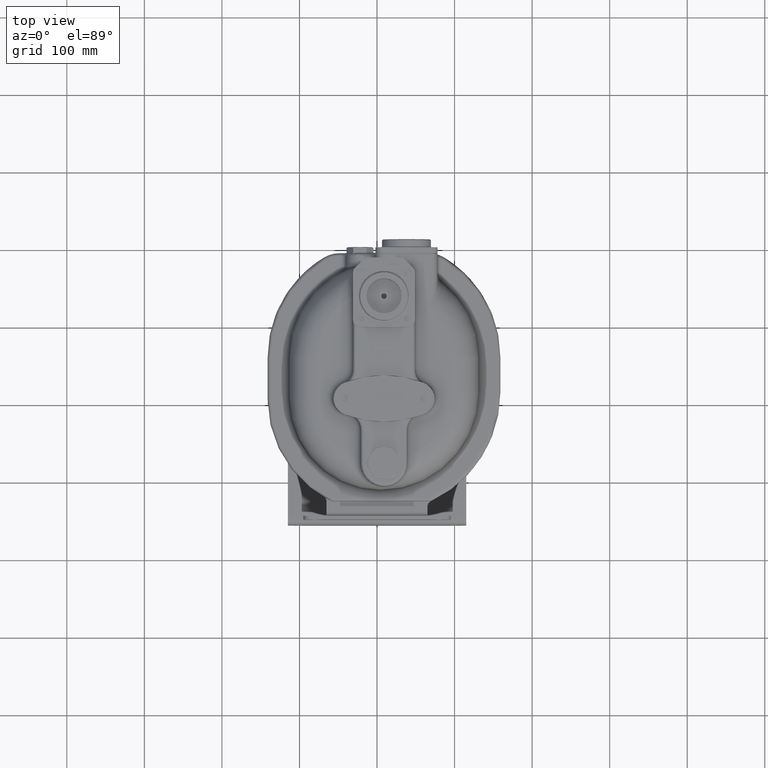
[diagram: clean part render]
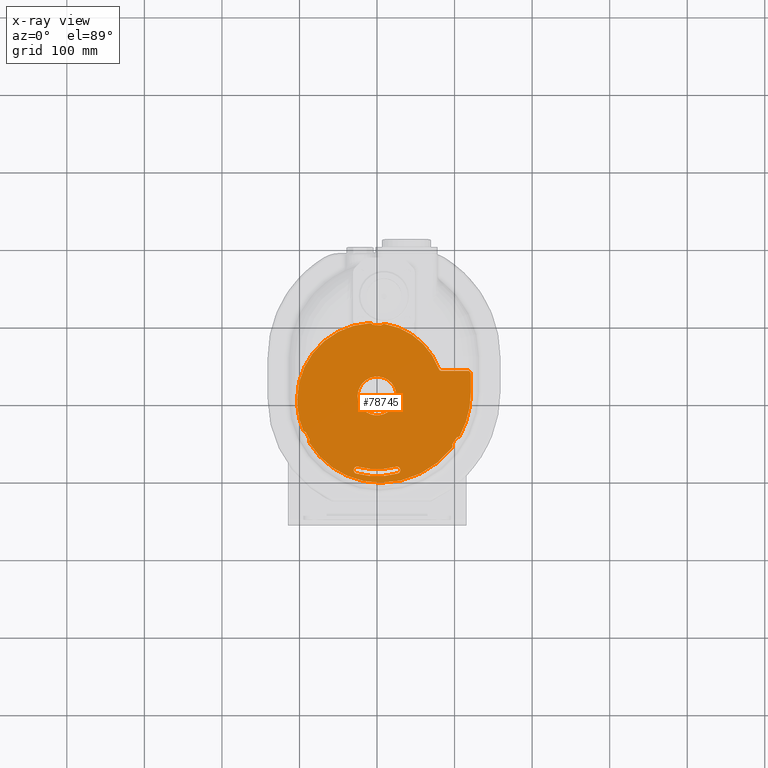
[diagram: x-ray — body ghosted, one internal face saturated and labeled with its STEP entity id]
A machine part, top view, then the same camera in x-ray: the body is ghosted and one INTERNAL B-rep face — a face not visible from any outside direction — is saturated and labeled: STEP entity #78745.
In plain terms, the highlighted planar face has unit normal (0, 0, -1).
Its self-contained STEP definition (entity closure, byte-faithful):
#17261=CARTESIAN_POINT('',(8.300285709621E1,3.6E1,-6.5E0));
#17262=DIRECTION('',(0.E0,0.E0,-1.E0));
#17263=DIRECTION('',(4.842919138311E-2,-9.988266182987E-1,0.E0));
#17264=AXIS2_PLACEMENT_3D('',#17261,#17262,#17263);
#17266=CARTESIAN_POINT('',(9.E0,8.892748367682E1,-6.5E0));
#17267=DIRECTION('',(0.E0,0.E0,1.E0));
#17268=DIRECTION('',(1.578947368421E-1,9.874559494365E-1,0.E0));
#17269=AXIS2_PLACEMENT_3D('',#17266,#17267,#17268);
#17271=DIRECTION('',(-9.987351946407E-1,5.027932960894E-2,0.E0));
#17272=VECTOR('',#17271,1.106472982759E1);
#17273=CARTESIAN_POINT('',(5.641170585461E0,9.109964043084E1,-6.5E0));
#17274=LINE('',#17273,#17272);
#17275=CARTESIAN_POINT('',(-9.E0,8.989279633531E1,-6.5E0));
#17276=DIRECTION('',(0.E0,0.E0,-1.E0));
#17277=DIRECTION('',(-4.761904761905E-2,9.988655696859E-1,0.E0));
#17278=AXIS2_PLACEMENT_3D('',#17275,#17276,#17277);
#17280=CARTESIAN_POINT('',(-4.5E0,-4.5E0,-6.5E0));
#17281=DIRECTION('',(0.E0,0.E0,-1.E0));
#17282=DIRECTION('',(-1.E0,0.E0,0.E0));
#17283=AXIS2_PLACEMENT_3D('',#17280,#17281,#17282);
#17285=CARTESIAN_POINT('',(4.5E0,-4.5E0,-6.5E0));
#17286=DIRECTION('',(0.E0,0.E0,-1.E0));
#17287=DIRECTION('',(-9.298754007984E-1,-3.678746240095E-1,0.E0));
#17288=AXIS2_PLACEMENT_3D('',#17285,#17286,#17287);
#17290=CARTESIAN_POINT('',(-9.174210398263E1,-4.257502358498E1,-6.5E0));
#17291=DIRECTION('',(0.E0,0.E0,1.E0));
#17292=DIRECTION('',(-9.298754007983E-1,-3.678746240095E-1,0.E0));
#17293=AXIS2_PLACEMENT_3D('',#17290,#17291,#17292);
#17295=DIRECTION('',(4.484418717834E-1,-8.938119979232E-1,0.E0));
#17296=VECTOR('',#17295,1.098521978868E1);
#17297=CARTESIAN_POINT('',(-9.186551285823E1,-4.657311941292E1,-6.5E0));
#17298=LINE('',#17297,#17296);
#17299=CARTESIAN_POINT('',(-8.367312904622E1,-5.870100842419E1,-6.5E0));
#17300=DIRECTION('',(0.E0,0.E0,-1.E0));
#17301=DIRECTION('',(-8.519142903016E-1,-5.236812408135E-1,0.E0));
#17302=AXIS2_PLACEMENT_3D('',#17299,#17300,#17301);
#17304=CARTESIAN_POINT('',(4.5E0,-4.5E0,-6.5E0));
#17305=DIRECTION('',(0.E0,0.E0,-1.E0));
#17306=DIRECTION('',(0.E0,-1.E0,0.E0));
#17307=AXIS2_PLACEMENT_3D('',#17304,#17305,#17306);
#17309=CARTESIAN_POINT('',(4.5E0,4.5E0,-6.5E0));
#17310=DIRECTION('',(0.E0,0.E0,-1.E0));
#17311=DIRECTION('',(7.908192518570E-1,-6.120497617779E-1,0.E0));
#17312=AXIS2_PLACEMENT_3D('',#17309,#17310,#17311);
#17314=CARTESIAN_POINT('',(9.346716583391E1,-6.435559820001E1,-6.5E0));
#17315=DIRECTION('',(0.E0,0.E0,1.E0));
#17316=DIRECTION('',(7.908192518570E-1,-6.120497617779E-1,0.E0));
#17317=AXIS2_PLACEMENT_3D('',#17314,#17315,#17316);
#17319=DIRECTION('',(5.459704436477E-1,8.378044370037E-1,0.E0));
#17320=VECTOR('',#17319,1.094643522696E1);
#17321=CARTESIAN_POINT('',(9.696428239858E1,-6.241390416306E1,-6.5E0));
#17322=LINE('',#17321,#17320);
#17323=CARTESIAN_POINT('',(1.033229688702E2,-4.926123904526E1,-6.5E0));
#17324=DIRECTION('',(0.E0,0.E0,-1.E0));
#17325=DIRECTION('',(8.784263899572E-1,-4.778776804023E-1,0.E0));
#17326=AXIS2_PLACEMENT_3D('',#17323,#17324,#17325);
#17328=CARTESIAN_POINT('',(4.5E0,4.5E0,-6.5E0));
#17329=DIRECTION('',(0.E0,0.E0,-1.E0));
#17330=DIRECTION('',(1.E0,1.138240670053E-14,0.E0));
#17331=AXIS2_PLACEMENT_3D('',#17328,#17329,#17330);
#17333=DIRECTION('',(0.E0,1.E0,0.E0));
#17334=VECTOR('',#17333,2.4E1);
#17335=CARTESIAN_POINT('',(1.21E2,4.5E0,-6.5E0));
#17336=LINE('',#17335,#17334);
#17337=CARTESIAN_POINT('',(1.17E2,2.85E1,-6.5E0));
#17338=DIRECTION('',(0.E0,0.E0,-1.E0));
#17339=DIRECTION('',(0.E0,1.E0,0.E0));
#17340=AXIS2_PLACEMENT_3D('',#17337,#17338,#17339);
#17342=DIRECTION('',(-1.E0,0.E0,0.E0));
#17343=VECTOR('',#17342,3.364642864402E1);
#17344=CARTESIAN_POINT('',(1.17E2,3.25E1,-6.5E0));
#17345=LINE('',#17344,#17343);
#17346=CARTESIAN_POINT('',(8.335357135598E1,3.65E1,-6.5E0));
#17347=DIRECTION('',(0.E0,0.E0,-1.E0));
#17348=DIRECTION('',(0.E0,-1.E0,0.E0));
#17349=AXIS2_PLACEMENT_3D('',#17346,#17347,#17348);
#17351=CARTESIAN_POINT('',(0.E0,0.E0,-6.5E0));
#17352=DIRECTION('',(0.E0,0.E0,1.E0));
#17353=DIRECTION('',(-1.E0,0.E0,0.E0));
#17354=AXIS2_PLACEMENT_3D('',#17351,#17352,#17353);
#17356=CARTESIAN_POINT('',(0.E0,0.E0,-6.5E0));
#17357=DIRECTION('',(0.E0,0.E0,1.E0));
#17358=DIRECTION('',(1.E0,0.E0,0.E0));
#17359=AXIS2_PLACEMENT_3D('',#17356,#17357,#17358);
#17361=CARTESIAN_POINT('',(2.55E1,-9.565955258102E1,-6.5E0));
#17362=DIRECTION('',(0.E0,0.E0,-1.E0));
#17363=DIRECTION('',(-2.575757575753E-1,9.662581068791E-1,0.E0));
#17364=AXIS2_PLACEMENT_3D('',#17361,#17362,#17363);
#17366=CARTESIAN_POINT('',(0.E0,0.E0,-6.5E0));
#17367=DIRECTION('',(0.E0,0.E0,-1.E0));
#17368=DIRECTION('',(2.575757575758E-1,-9.662581068789E-1,0.E0));
#17369=AXIS2_PLACEMENT_3D('',#17366,#17367,#17368);
#17371=CARTESIAN_POINT('',(-2.55E1,-9.565955258102E1,-6.5E0));
#17372=DIRECTION('',(0.E0,0.E0,-1.E0));
#17373=DIRECTION('',(-2.575757575757E-1,-9.662581068789E-1,0.E0));
#17374=AXIS2_PLACEMENT_3D('',#17371,#17372,#17373);
#17376=CARTESIAN_POINT('',(0.E0,0.E0,-6.5E0));
#17377=DIRECTION('',(0.E0,0.E0,-1.E0));
#17378=DIRECTION('',(2.575757575758E-1,-9.662581068789E-1,0.E0));
#17379=AXIS2_PLACEMENT_3D('',#17376,#17377,#17378);
#18688=CARTESIAN_POINT('',(-4.5E0,4.5E0,-6.5E0));
#18689=DIRECTION('',(0.E0,0.E0,-1.E0));
#18690=DIRECTION('',(1.578947368421E-1,9.874559494365E-1,0.E0));
#18691=AXIS2_PLACEMENT_3D('',#18688,#18689,#18690);
#46565=CARTESIAN_POINT('',(-2.5E1,0.E0,-6.5E0));
#46566=CARTESIAN_POINT('',(2.5E1,0.E0,-6.5E0));
#46567=VERTEX_POINT('',#46565);
#46568=VERTEX_POINT('',#46566);
#46676=CARTESIAN_POINT('',(2.434090909091E1,-9.131139110006E1,-6.5E0));
#46678=VERTEX_POINT('',#46676);
#46680=CARTESIAN_POINT('',(2.665909090909E1,-1.000077140620E2,-6.5E0));
#46682=VERTEX_POINT('',#46680);
#46684=CARTESIAN_POINT('',(-2.665909090909E1,-1.000077140620E2,-6.5E0));
#46686=VERTEX_POINT('',#46684);
#46688=CARTESIAN_POINT('',(-2.434090909091E1,-9.131139110006E1,-6.5E0));
#46690=VERTEX_POINT('',#46688);
#46828=CARTESIAN_POINT('',(1.21E2,4.5E0,-6.5E0));
#46829=CARTESIAN_POINT('',(1.21E2,2.85E1,-6.5E0));
#46830=VERTEX_POINT('',#46828);
#46831=VERTEX_POINT('',#46829);
#46832=CARTESIAN_POINT('',(1.17E2,3.25E1,-6.5E0));
#46833=VERTEX_POINT('',#46832);
#46834=CARTESIAN_POINT('',(8.335357135598E1,3.25E1,-6.5E0));
#46835=VERTEX_POINT('',#46834);
#46836=CARTESIAN_POINT('',(-1.03E2,-4.5E0,-6.5E0));
#46837=CARTESIAN_POINT('',(-9.190476190476E0,9.388825861406E1,-6.5E0));
#46838=VERTEX_POINT('',#46836);
#46839=VERTEX_POINT('',#46837);
#46840=CARTESIAN_POINT('',(4.5E0,-1.12E2,-6.5E0));
#46841=CARTESIAN_POINT('',(-8.708078620743E1,-6.079573338744E1,-6.5E0));
#46842=VERTEX_POINT('',#46840);
#46843=VERTEX_POINT('',#46841);
#46844=CARTESIAN_POINT('',(-9.546160558582E1,-4.404652208102E1,-6.5E0));
#46845=VERTEX_POINT('',#46844);
#46846=CARTESIAN_POINT('',(1.068366744300E2,-5.117274976687E1,-6.5E0));
#46847=VERTEX_POINT('',#46846);
#46848=CARTESIAN_POINT('',(9.663044284134E1,-6.680379724712E1,-6.5E0));
#46849=VERTEX_POINT('',#46848);
#46860=CARTESIAN_POINT('',(9.631578947368E0,9.287730747457E1,-6.5E0));
#46861=CARTESIAN_POINT('',(5.641170585461E0,9.109964043084E1,-6.5E0));
#46862=VERTEX_POINT('',#46860);
#46863=VERTEX_POINT('',#46861);
#46864=CARTESIAN_POINT('',(-5.409564512547E0,9.165596762888E1,-6.5E0));
#46865=VERTEX_POINT('',#46864);
#46866=CARTESIAN_POINT('',(-8.693928033424E1,-5.639184065987E1,-6.5E0));
#46867=VERTEX_POINT('',#46866);
#46868=CARTESIAN_POINT('',(-9.186551285823E1,-4.657311941292E1,-6.5E0));
#46869=VERTEX_POINT('',#46868);
#46870=CARTESIAN_POINT('',(1.029407124958E2,-5.324293216054E1,-6.5E0));
#46871=VERTEX_POINT('',#46870);
#46872=CARTESIAN_POINT('',(9.696428239858E1,-6.241390416306E1,-6.5E0));
#46873=VERTEX_POINT('',#46872);
#47125=CARTESIAN_POINT('',(8.317235926605E1,3.250410683595E1,-6.5E0));
#47126=CARTESIAN_POINT('',(7.970973881840E1,3.481451612903E1,-6.5E0));
#47127=VERTEX_POINT('',#47125);
#47128=VERTEX_POINT('',#47126);
#78684=CARTESIAN_POINT('',(1.065814491317E-14,0.E0,-6.5E0));
#78685=DIRECTION('',(0.E0,0.E0,-1.E0));
#78686=DIRECTION('',(-1.E0,0.E0,0.E0));
#78687=AXIS2_PLACEMENT_3D('',#78684,#78685,#78686);
#78688=PLANE('',#78687);
#78690=ORIENTED_EDGE('',*,*,#78689,.T.);
#78692=ORIENTED_EDGE('',*,*,#78691,.F.);
#78694=ORIENTED_EDGE('',*,*,#78693,.T.);
#78696=ORIENTED_EDGE('',*,*,#78695,.T.);
#78698=ORIENTED_EDGE('',*,*,#78697,.F.);
#78700=ORIENTED_EDGE('',*,*,#78699,.F.);
#78702=ORIENTED_EDGE('',*,*,#78701,.F.);
#78704=ORIENTED_EDGE('',*,*,#78703,.T.);
#78706=ORIENTED_EDGE('',*,*,#78705,.T.);
#78708=ORIENTED_EDGE('',*,*,#78707,.F.);
#78710=ORIENTED_EDGE('',*,*,#78709,.F.);
#78712=ORIENTED_EDGE('',*,*,#78711,.F.);
#78714=ORIENTED_EDGE('',*,*,#78713,.T.);
#78716=ORIENTED_EDGE('',*,*,#78715,.T.);
#78718=ORIENTED_EDGE('',*,*,#78717,.F.);
#78720=ORIENTED_EDGE('',*,*,#78719,.F.);
#78722=ORIENTED_EDGE('',*,*,#78721,.T.);
#78724=ORIENTED_EDGE('',*,*,#78723,.F.);
#78726=ORIENTED_EDGE('',*,*,#78725,.T.);
#78728=ORIENTED_EDGE('',*,*,#78727,.T.);
#78729=EDGE_LOOP('',(#78690,#78692,#78694,#78696,#78698,#78700,#78702,#78704,
#78706,#78708,#78710,#78712,#78714,#78716,#78718,#78720,#78722,#78724,#78726,
#78728));
#78730=FACE_OUTER_BOUND('',#78729,.F.);
#78731=ORIENTED_EDGE('',*,*,#73891,.F.);
#78732=ORIENTED_EDGE('',*,*,#73925,.F.);
#78733=EDGE_LOOP('',(#78731,#78732));
#78734=FACE_BOUND('',#78733,.F.);
#78736=ORIENTED_EDGE('',*,*,#78735,.T.);
#78738=ORIENTED_EDGE('',*,*,#78737,.T.);
#78740=ORIENTED_EDGE('',*,*,#78739,.T.);
#78742=ORIENTED_EDGE('',*,*,#78741,.F.);
#78743=EDGE_LOOP('',(#78736,#78738,#78740,#78742));
#78744=FACE_BOUND('',#78743,.F.);
#78745=ADVANCED_FACE('',(#78730,#78734,#78744),#78688,.T.);
#17265=CIRCLE('',#17264,3.5E0);
#17270=CIRCLE('',#17269,4.E0);
#17279=CIRCLE('',#17278,4.E0);
#17284=CIRCLE('',#17283,9.85E1);
#17289=CIRCLE('',#17288,1.075E2);
#17294=CIRCLE('',#17293,4.E0);
#17303=CIRCLE('',#17302,4.E0);
#17308=CIRCLE('',#17307,1.075E2);
#17313=CIRCLE('',#17312,1.165E2);
#17318=CIRCLE('',#17317,4.E0);
#17327=CIRCLE('',#17326,4.E0);
#17332=CIRCLE('',#17331,1.165E2);
#17341=CIRCLE('',#17340,4.E0);
#17350=CIRCLE('',#17349,4.E0);
#17355=CIRCLE('',#17354,2.5E1);
#17360=CIRCLE('',#17359,2.5E1);
#17365=CIRCLE('',#17364,4.5E0);
#17370=CIRCLE('',#17369,1.035E2);
#17375=CIRCLE('',#17374,4.5E0);
#17380=CIRCLE('',#17379,9.45E1);
#18692=CIRCLE('',#18691,8.95E1);
#73891=EDGE_CURVE('',#46567,#46568,#17355,.T.);
#73925=EDGE_CURVE('',#46568,#46567,#17360,.T.);
#78689=EDGE_CURVE('',#47127,#47128,#17265,.T.);
#78691=EDGE_CURVE('',#46862,#47128,#18692,.T.);
#78693=EDGE_CURVE('',#46862,#46863,#17270,.T.);
#78695=EDGE_CURVE('',#46863,#46865,#17274,.T.);
#78697=EDGE_CURVE('',#46839,#46865,#17279,.T.);
#78699=EDGE_CURVE('',#46838,#46839,#17284,.T.);
#78701=EDGE_CURVE('',#46845,#46838,#17289,.T.);
#78703=EDGE_CURVE('',#46845,#46869,#17294,.T.);
#78705=EDGE_CURVE('',#46869,#46867,#17298,.T.);
#78707=EDGE_CURVE('',#46843,#46867,#17303,.T.);
#78709=EDGE_CURVE('',#46842,#46843,#17308,.T.);
#78711=EDGE_CURVE('',#46849,#46842,#17313,.T.);
#78713=EDGE_CURVE('',#46849,#46873,#17318,.T.);
#78715=EDGE_CURVE('',#46873,#46871,#17322,.T.);
#78717=EDGE_CURVE('',#46847,#46871,#17327,.T.);
#78719=EDGE_CURVE('',#46830,#46847,#17332,.T.);
#78721=EDGE_CURVE('',#46830,#46831,#17336,.T.);
#78723=EDGE_CURVE('',#46833,#46831,#17341,.T.);
#78725=EDGE_CURVE('',#46833,#46835,#17345,.T.);
#78727=EDGE_CURVE('',#46835,#47127,#17350,.T.);
#78735=EDGE_CURVE('',#46678,#46682,#17365,.T.);
#78737=EDGE_CURVE('',#46682,#46686,#17370,.T.);
#78739=EDGE_CURVE('',#46686,#46690,#17375,.T.);
#78741=EDGE_CURVE('',#46678,#46690,#17380,.T.);